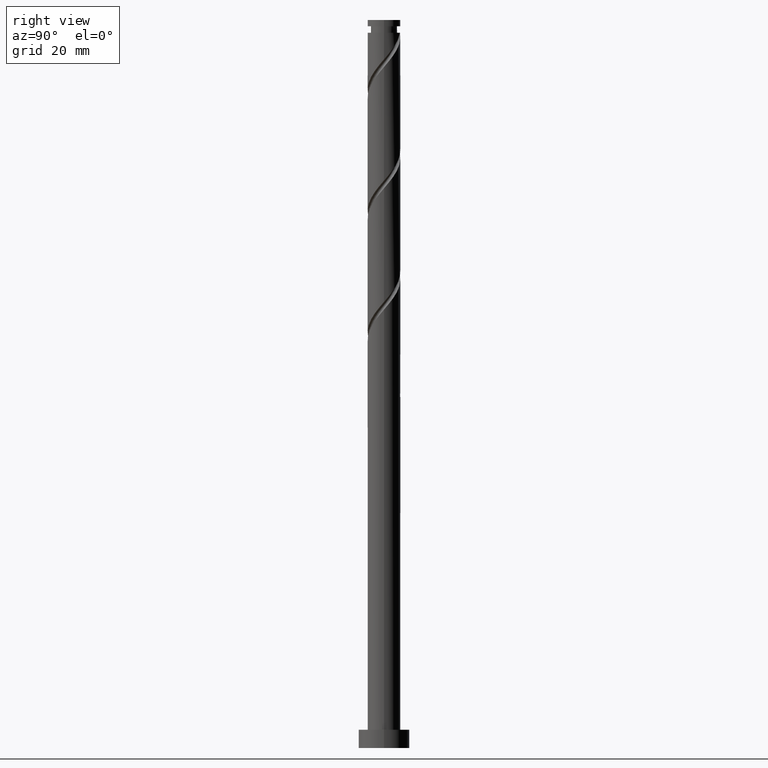
[diagram: clean part render]
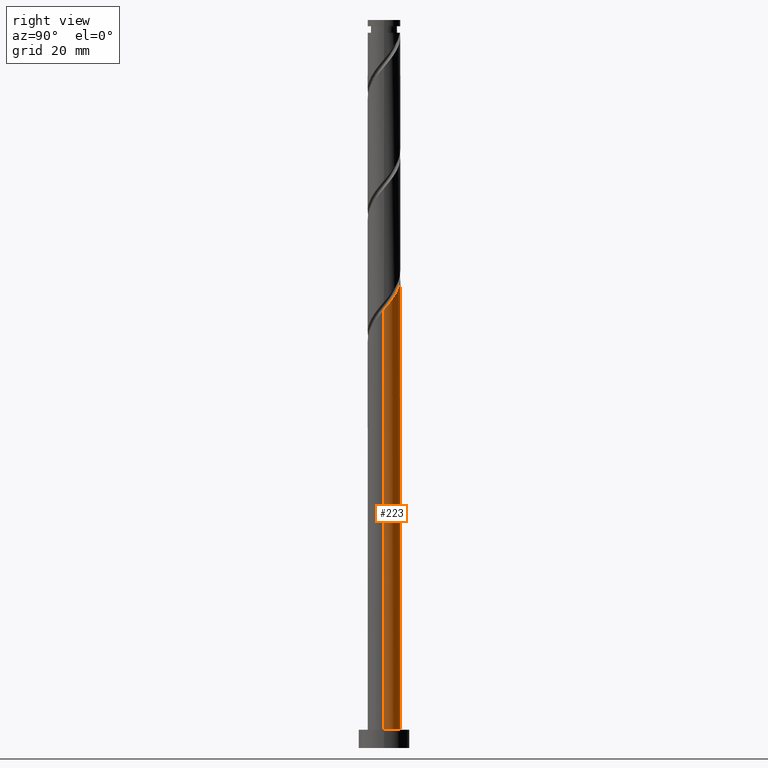
[diagram: same view with one face highlighted and labeled with its STEP entity id]
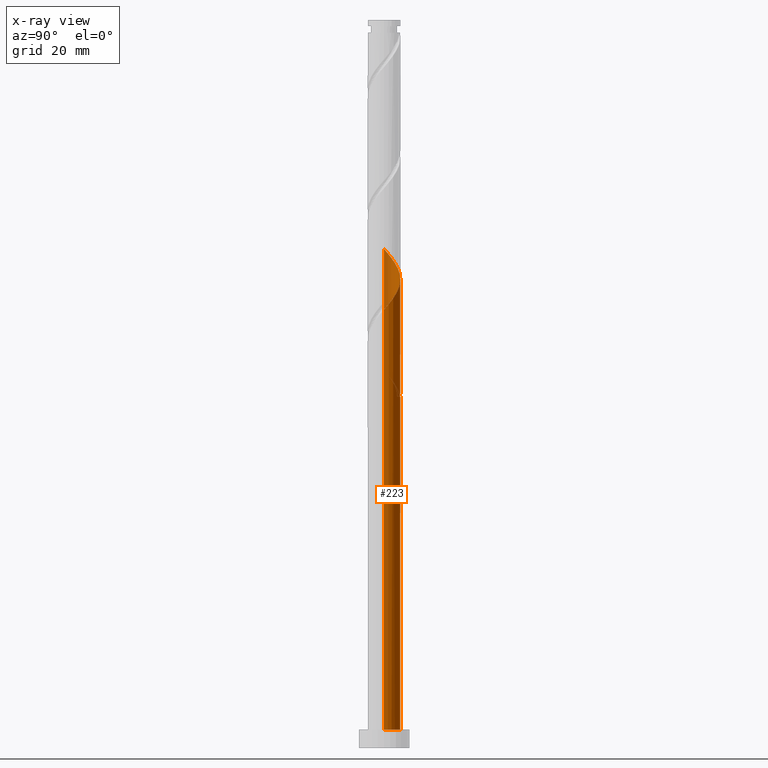
[diagram: x-ray of the same camera — body ghosted, the highlighted face saturated]
A machine part, right view. The second image highlights one B-rep face of the part: STEP entity #223.
The next image is the same camera in x-ray: the body ghosted, the highlighted face saturated — about 0% of this face is hidden behind the body in this view.
In plain terms, the highlighted cylindrical surface (edge-blend (fillet) strip) has radius 4.5 mm, axis along (-0, -0, -1).
Its self-contained STEP definition (entity closure, byte-faithful):
#2 = CARTESIAN_POINT ( 'NONE',  ( -4.266916377387361514, 1.429484042717368952, 135.3896359296881542 ) ) ;
#6 = EDGE_CURVE ( 'NONE', #495, #1458, #873, .T. ) ;
#18 = CARTESIAN_POINT ( 'NONE',  ( -2.485134777456511124, 3.751547032608838261, 100.6674137074659257 ) ) ;
#29 = EDGE_CURVE ( 'NONE', #1498, #1458, #1387, .T. ) ;
#32 = DIRECTION ( 'NONE',  ( -5.135813185032629876E-30, -7.709882115452480533E-15, -1.000000000000000000 ) ) ;
#105 = VECTOR ( 'NONE', #1046, 1000.000000000000000 ) ;
#106 = CARTESIAN_POINT ( 'NONE',  ( 3.371427683991403690, 2.980515957282635409, 124.2785248185770399 ) ) ;
#123 = CARTESIAN_POINT ( 'NONE',  ( 4.027963365409952701, 2.006367645003126920, 122.8896359296881826 ) ) ;
#132 = CARTESIAN_POINT ( 'NONE',  ( -3.424372832315396131, 2.979035314116054156, 133.3063025963548114 ) ) ;
#133 = CIRCLE ( 'NONE', #357, 4.500000000000000000 ) ;
#135 = CARTESIAN_POINT ( 'NONE',  ( 0.000000000000000000, 0.000000000000000000, 96.50074704079928267 ) ) ;
#153 = LINE ( 'NONE', #1084, #1713 ) ;
#154 = CARTESIAN_POINT ( 'NONE',  ( -4.500000000000006217, 0.1383387824595328219, 136.9406833642276808 ) ) ;
#155 = CARTESIAN_POINT ( 'NONE',  ( -2.979035314116047939, 3.424372832315392579, 101.3618581519103543 ) ) ;
#191 = VECTOR ( 'NONE', #1223, 1000.000000000000000 ) ;
#222 = CARTESIAN_POINT ( 'NONE',  ( 1.429484042717370507, 4.266916377387359738, 127.0563025963548398 ) ) ;
#223 = ADVANCED_FACE ( 'NONE', ( #1581 ), #1306, .T. ) ;
#230 = CARTESIAN_POINT ( 'NONE',  ( -2.006367645003128697, 4.027963365409951813, 97.88963592968816840 ) ) ;
#242 = VERTEX_POINT ( 'NONE', #1443 ) ;
#244 = CARTESIAN_POINT ( 'NONE',  ( 0.000000000000000000, 0.000000000000000000, 200.0000000000000000 ) ) ;
#251 = CARTESIAN_POINT ( 'NONE',  ( -4.500000000000001776, 4.949702650838273832E-15, 105.8976470293426360 ) ) ;
#255 = CARTESIAN_POINT ( 'NONE',  ( -4.500000000000006217, -2.706634984295231129E-15, 137.1038470522558441 ) ) ;
#262 = CARTESIAN_POINT ( 'NONE',  ( -4.499999999999999112, 0.4522670168666489410, 105.3642206601533360 ) ) ;
#290 = DIRECTION ( 'NONE',  ( 0.000000000000000000, 0.000000000000000000, 1.000000000000000000 ) ) ;
#357 = AXIS2_PLACEMENT_3D ( 'NONE', #992, #290, #830 ) ;
#358 = CARTESIAN_POINT ( 'NONE',  ( -4.500000000000000000, 0.000000000000000000, 200.0000000000000000 ) ) ;
#369 = CARTESIAN_POINT ( 'NONE',  ( 1.991234240796978749, 4.078721232902290161, 126.3618581519103543 ) ) ;
#378 = CARTESIAN_POINT ( 'NONE',  ( -2.980515957282638073, 3.371427683991401025, 132.6118581519103827 ) ) ;
#387 = CARTESIAN_POINT ( 'NONE',  ( 4.500000000000005329, -2.990756888724012433E-17, 120.4371803855891727 ) ) ;
#388 = CARTESIAN_POINT ( 'NONE',  ( -4.027963365409944707, 2.006367645003127365, 103.4451914852436971 ) ) ;
#397 = CARTESIAN_POINT ( 'NONE',  ( 3.763820053866749227, 2.536659082249878683, 123.5840803741325828 ) ) ;
#410 = VERTEX_POINT ( 'NONE', #964 ) ;
#441 = CARTESIAN_POINT ( 'NONE',  ( -4.500000000000005329, -2.706634984295231129E-15, 137.1038470522558441 ) ) ;
#494 = LINE ( 'NONE', #358, #105 ) ;
#495 = VERTEX_POINT ( 'NONE', #1245 ) ;
#507 = CARTESIAN_POINT ( 'NONE',  ( -4.266916377387361514, 1.429484042717368952, 102.0563025963548114 ) ) ;
#508 = ORIENTED_EDGE ( 'NONE', *, *, #1230, .F. ) ;
#529 = CARTESIAN_POINT ( 'NONE',  ( -0.8954886933959586015, 4.410000000000007248, 96.50074704079925425 ) ) ;
#545 = DIRECTION ( 'NONE',  ( -0.000000000000000000, -0.000000000000000000, -1.000000000000000000 ) ) ;
#554 = EDGE_CURVE ( 'NONE', #410, #1596, #133, .T. ) ;
#555 = LINE ( 'NONE', #1106, #191 ) ;
#557 = CARTESIAN_POINT ( 'NONE',  ( -1.991234240796973642, 4.078721232902286609, 99.97296926302146858 ) ) ;
#567 = DIRECTION ( 'NONE',  ( 0.000000000000000000, 1.000000000000000000, -9.251858538542970644E-15 ) ) ;
#574 =( BOUNDED_CURVE ( )  B_SPLINE_CURVE ( 2, ( #387, #794, #1476, #803, #123, #397, #106, #767, #940, #369, #222, #1048, #784, #1087, #1584, #909, #1723, #1348, #378, #132, #676, #1594, #2, #919, #691, #154, #441 ),
 .UNSPECIFIED., .F., .T. ) 
 B_SPLINE_CURVE_WITH_KNOTS ( ( 3, 2, 2, 2, 2, 2, 2, 2, 2, 2, 2, 2, 2, 3 ),
 ( 0.1795317669814462669, 0.1875000000000000000, 0.1979166666666666297, 0.2083333333333333703, 0.2187500000000000000, 0.2291666666666666297, 0.2395833333333333703, 0.2500000000000000000, 0.2604166666666666297, 0.2708333333333333703, 0.2812500000000000000, 0.2916666666666666297, 0.3020833333333333703, 0.3045317669814462946 ),
 .UNSPECIFIED. ) 
 CURVE ( )  GEOMETRIC_REPRESENTATION_ITEM ( )  RATIONAL_B_SPLINE_CURVE ( ( 0.9062941362546459434, 0.9031415850403501366, 0.9090909090909256030, 0.9013135103398440817, 0.9090909090909256030, 0.9013135103398440817, 0.9090909090909256030, 0.9013135103398440817, 0.9090909090909256030, 0.9013135103398440817, 0.9090909090909256030, 0.9013135103398440817, 0.9090909090909256030, 0.9013135103398440817, 0.9090909090909256030, 0.9013135103398440817, 0.9090909090909256030, 0.9013135103398440817, 0.9090909090909256030, 0.9013135103398440817, 0.9090909090909256030, 0.9013135103398440817, 0.9090909090909256030, 0.9013135103398440817, 0.9090909090909256030, 0.9072628343904193260, 0.9062941362546459434 ) ) 
 REPRESENTATION_ITEM ( '' )  );
#641 = ORIENTED_EDGE ( 'NONE', *, *, #1282, .F. ) ;
#654 = CARTESIAN_POINT ( 'NONE',  ( -4.500000000000005329, -2.706634984295230734E-15, 103.7705137189225297 ) ) ;
#676 = CARTESIAN_POINT ( 'NONE',  ( -3.751547032608844479, 2.485134777456515565, 134.0007470407993537 ) ) ;
#677 = CARTESIAN_POINT ( 'NONE',  ( -3.371427683991394808, 2.980515957282634076, 102.0563025963547972 ) ) ;
#691 = CARTESIAN_POINT ( 'NONE',  ( -4.491502422459643817, 0.2764163328011088883, 136.7785248185770115 ) ) ;
#767 = CARTESIAN_POINT ( 'NONE',  ( 2.979035314116056821, 3.424372832315393467, 124.9729692630214686 ) ) ;
#774 = CARTESIAN_POINT ( 'NONE',  ( -2.980515957282638073, 3.371427683991401025, 99.27852481857706834 ) ) ;
#784 = CARTESIAN_POINT ( 'NONE',  ( 0.2764163328011116083, 4.491502422459643817, 128.4451914852437255 ) ) ;
#794 = CARTESIAN_POINT ( 'NONE',  ( 4.500000000000007105, 0.4522670168666401147, 120.9706067547784727 ) ) ;
#803 = CARTESIAN_POINT ( 'NONE',  ( 4.292106676953157063, 1.476076207756374714, 122.1951914852436829 ) ) ;
#804 = ORIENTED_EDGE ( 'NONE', *, *, #554, .T. ) ;
#827 = CARTESIAN_POINT ( 'NONE',  ( 0.8954886933959598228, 4.409999999999999254, 96.50074704079925425 ) ) ;
#828 = CARTESIAN_POINT ( 'NONE',  ( -1.429484042717364511, 4.266916377387353521, 99.27852481857703992 ) ) ;
#830 = DIRECTION ( 'NONE',  ( 1.000000000000000000, 0.000000000000000000, 0.000000000000000000 ) ) ;
#833 = EDGE_CURVE ( 'NONE', #1097, #410, #153, .T. ) ;
#873 =( BOUNDED_CURVE ( )  B_SPLINE_CURVE ( 2, ( #251, #262, #1225, #1621, #388, #961, #677, #155, #18, #557, #828, #970, #941, #932, #1477 ),
 .UNSPECIFIED., .F., .T. ) 
 B_SPLINE_CURVE_WITH_KNOTS ( ( 3, 2, 2, 2, 2, 2, 2, 3 ),
 ( 0.9295317669814463502, 0.9375000000000000000, 0.9479166666666666297, 0.9583333333333333703, 0.9687500000000000000, 0.9791666666666666297, 0.9895833333333333703, 1.000000000000000000 ),
 .UNSPECIFIED. ) 
 CURVE ( )  GEOMETRIC_REPRESENTATION_ITEM ( )  RATIONAL_B_SPLINE_CURVE ( ( 0.9062941362546397261, 0.9031415850403440304, 0.9090909090909194967, 0.9013135103398377534, 0.9090909090909194967, 0.9013135103398377534, 0.9090909090909194967, 0.9013135103398377534, 0.9090909090909194967, 0.9013135103398377534, 0.9090909090909194967, 0.9013135103398377534, 0.9090909090909194967, 0.9013135103398377534, 0.9090909090909194967 ) ) 
 REPRESENTATION_ITEM ( '' )  );
#902 = EDGE_LOOP ( 'NONE', ( #508, #920, #804, #1628, #1349, #1023, #1433, #641 ) ) ;
#909 = CARTESIAN_POINT ( 'NONE',  ( -1.476076207756376046, 4.292106676953155286, 130.5285248185770115 ) ) ;
#919 = CARTESIAN_POINT ( 'NONE',  ( -4.455111521872428426, 0.8677338446377591552, 136.0840803741326113 ) ) ;
#920 = ORIENTED_EDGE ( 'NONE', *, *, #833, .T. ) ;
#932 = CARTESIAN_POINT ( 'NONE',  ( 0.3149011790355433216, 4.527893323046852991, 97.19519148524372554 ) ) ;
#940 = CARTESIAN_POINT ( 'NONE',  ( 2.485134777456516453, 3.751547032608842702, 125.6674137074659257 ) ) ;
#941 = CARTESIAN_POINT ( 'NONE',  ( -0.2764163328011065568, 4.491502422459638488, 97.88963592968815419 ) ) ;
#961 = CARTESIAN_POINT ( 'NONE',  ( -3.763820053866741677, 2.536659082249878683, 102.7507470407992400 ) ) ;
#964 = CARTESIAN_POINT ( 'NONE',  ( 4.500000000000000000, 5.510910596163088569E-16, 5.000000000000000000 ) ) ;
#970 = CARTESIAN_POINT ( 'NONE',  ( -0.8677338446377570458, 4.455111521872423097, 98.58408037413261127 ) ) ;
#992 = CARTESIAN_POINT ( 'NONE',  ( 0.000000000000000000, 0.000000000000000000, 5.000000000000000000 ) ) ;
#1009 = VERTEX_POINT ( 'NONE', #255 ) ;
#1023 = ORIENTED_EDGE ( 'NONE', *, *, #29, .T. ) ;
#1046 = DIRECTION ( 'NONE',  ( -0.000000000000000000, -0.000000000000000000, -1.000000000000000000 ) ) ;
#1048 = CARTESIAN_POINT ( 'NONE',  ( 0.8677338446377617087, 4.455111521872428426, 127.7507470407992543 ) ) ;
#1066 = CARTESIAN_POINT ( 'NONE',  ( -4.078721232902291050, 1.991234240796977639, 101.3618581519103401 ) ) ;
#1076 = CARTESIAN_POINT ( 'NONE',  ( -2.536659082249880903, 3.763820053866747450, 98.58408037413261127 ) ) ;
#1084 = CARTESIAN_POINT ( 'NONE',  ( 4.500000000000000000, 5.510910596163088569E-16, 200.0000000000000000 ) ) ;
#1087 = CARTESIAN_POINT ( 'NONE',  ( -0.3149011790355383811, 4.527893323046858320, 129.1396359296880973 ) ) ;
#1097 = VERTEX_POINT ( 'NONE', #1339 ) ;
#1106 = CARTESIAN_POINT ( 'NONE',  ( -4.500000000000000000, 0.000000000000000000, 200.0000000000000000 ) ) ;
#1129 = AXIS2_PLACEMENT_3D ( 'NONE', #244, #1436, #1288 ) ;
#1156 = EDGE_CURVE ( 'NONE', #1498, #242, #1663, .T. ) ;
#1157 = AXIS2_PLACEMENT_3D ( 'NONE', #135, #32, #567 ) ;
#1191 = CARTESIAN_POINT ( 'NONE',  ( -4.500000000000007105, 0.1383387824595163351, 103.6073500308943807 ) ) ;
#1223 = DIRECTION ( 'NONE',  ( -0.000000000000000000, -0.000000000000000000, -1.000000000000000000 ) ) ;
#1225 = CARTESIAN_POINT ( 'NONE',  ( -4.409999999999999254, 0.8954886933959590456, 104.8340803741325686 ) ) ;
#1230 = EDGE_CURVE ( 'NONE', #1097, #1009, #574, .T. ) ;
#1245 = CARTESIAN_POINT ( 'NONE',  ( -4.500000000000000888, 4.949702650838273832E-15, 105.8976470293426360 ) ) ;
#1282 = EDGE_CURVE ( 'NONE', #1009, #495, #555, .T. ) ;
#1288 = DIRECTION ( 'NONE',  ( -1.000000000000000000, 0.000000000000000000, 0.000000000000000000 ) ) ;
#1306 = CYLINDRICAL_SURFACE ( 'NONE', #1129, 4.500000000000000000 ) ;
#1329 = CARTESIAN_POINT ( 'NONE',  ( -4.455111521872428426, 0.8677338446377591552, 102.7507470407992543 ) ) ;
#1339 = CARTESIAN_POINT ( 'NONE',  ( 4.500000000000006217, -2.990756888724012433E-17, 120.4371803855891727 ) ) ;
#1348 = CARTESIAN_POINT ( 'NONE',  ( -2.536659082249880903, 3.763820053866747450, 131.9174137074659257 ) ) ;
#1349 = ORIENTED_EDGE ( 'NONE', *, *, #1156, .F. ) ;
#1387 = CIRCLE ( 'NONE', #1157, 4.500000000000000000 ) ;
#1433 = ORIENTED_EDGE ( 'NONE', *, *, #6, .F. ) ;
#1436 = DIRECTION ( 'NONE',  ( -0.000000000000000000, -0.000000000000000000, -1.000000000000000000 ) ) ;
#1443 = CARTESIAN_POINT ( 'NONE',  ( -4.500000000000006217, -2.706634984295231129E-15, 103.7705137189225297 ) ) ;
#1448 = CARTESIAN_POINT ( 'NONE',  ( -3.751547032608844479, 2.485134777456515565, 100.6674137074659541 ) ) ;
#1457 = CARTESIAN_POINT ( 'NONE',  ( -3.424372832315396131, 2.979035314116054156, 99.97296926302145437 ) ) ;
#1458 = VERTEX_POINT ( 'NONE', #827 ) ;
#1476 = CARTESIAN_POINT ( 'NONE',  ( 4.410000000000008136, 0.8954886933959588236, 121.5007470407992969 ) ) ;
#1477 = CARTESIAN_POINT ( 'NONE',  ( 0.8954886933959598228, 4.409999999999999254, 96.50074704079925425 ) ) ;
#1498 = VERTEX_POINT ( 'NONE', #1506 ) ;
#1506 = CARTESIAN_POINT ( 'NONE',  ( -0.8954886933959586015, 4.410000000000007248, 96.50074704079925425 ) ) ;
#1581 = FACE_OUTER_BOUND ( 'NONE', #902, .T. ) ;
#1584 = CARTESIAN_POINT ( 'NONE',  ( -0.8954886933959587125, 4.410000000000008136, 129.8340803741326113 ) ) ;
#1594 = CARTESIAN_POINT ( 'NONE',  ( -4.078721232902291050, 1.991234240796977639, 134.6951914852436971 ) ) ;
#1596 = VERTEX_POINT ( 'NONE', #1689 ) ;
#1611 = CARTESIAN_POINT ( 'NONE',  ( -4.491502422459643817, 0.2764163328011088883, 103.4451914852436971 ) ) ;
#1621 = CARTESIAN_POINT ( 'NONE',  ( -4.292106676953148181, 1.476076207756375158, 104.1396359296881116 ) ) ;
#1628 = ORIENTED_EDGE ( 'NONE', *, *, #1700, .F. ) ;
#1663 =( BOUNDED_CURVE ( )  B_SPLINE_CURVE ( 2, ( #529, #1716, #230, #1076, #774, #1457, #1448, #1066, #507, #1329, #1611, #1191, #654 ),
 .UNSPECIFIED., .F., .T. ) 
 B_SPLINE_CURVE_WITH_KNOTS ( ( 3, 2, 2, 2, 2, 2, 3 ),
 ( 0.000000000000000000, 0.01041666666666662966, 0.02083333333333337034, 0.03125000000000000000, 0.04166666666666662966, 0.05208333333333337034, 0.05453176698144658607 ),
 .UNSPECIFIED. ) 
 CURVE ( )  GEOMETRIC_REPRESENTATION_ITEM ( )  RATIONAL_B_SPLINE_CURVE ( ( 0.9090909090909256030, 0.9013135103398440817, 0.9090909090909256030, 0.9013135103398440817, 0.9090909090909256030, 0.9013135103398440817, 0.9090909090909256030, 0.9013135103398440817, 0.9090909090909256030, 0.9013135103398440817, 0.9090909090909256030, 0.9072628343904191039, 0.9062941362546456103 ) ) 
 REPRESENTATION_ITEM ( '' )  );
#1689 = CARTESIAN_POINT ( 'NONE',  ( -4.500000000000000000, 0.000000000000000000, 5.000000000000000000 ) ) ;
#1700 = EDGE_CURVE ( 'NONE', #242, #1596, #494, .T. ) ;
#1713 = VECTOR ( 'NONE', #545, 1000.000000000000000 ) ;
#1716 = CARTESIAN_POINT ( 'NONE',  ( -1.476076207756376046, 4.292106676953155286, 97.19519148524369712 ) ) ;
#1723 = CARTESIAN_POINT ( 'NONE',  ( -2.006367645003128697, 4.027963365409951813, 131.2229692630214970 ) ) ;